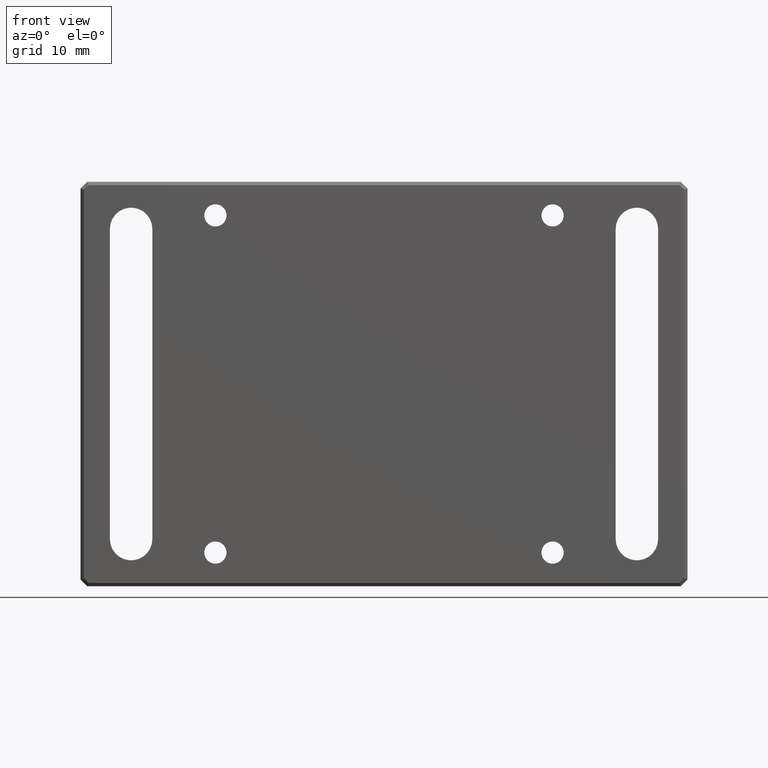
[diagram: clean part render]
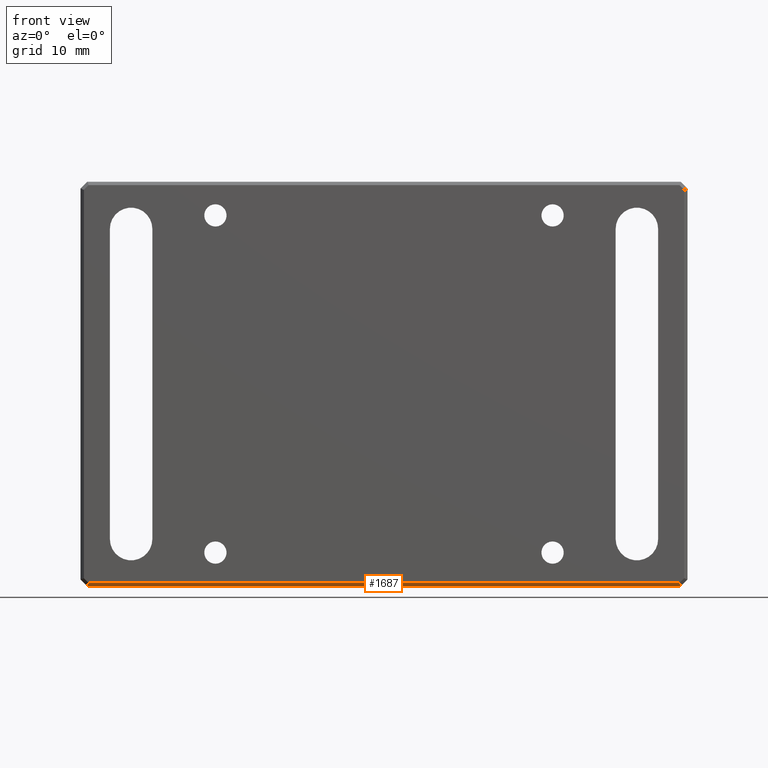
[diagram: same view with one face highlighted and labeled with its STEP entity id]
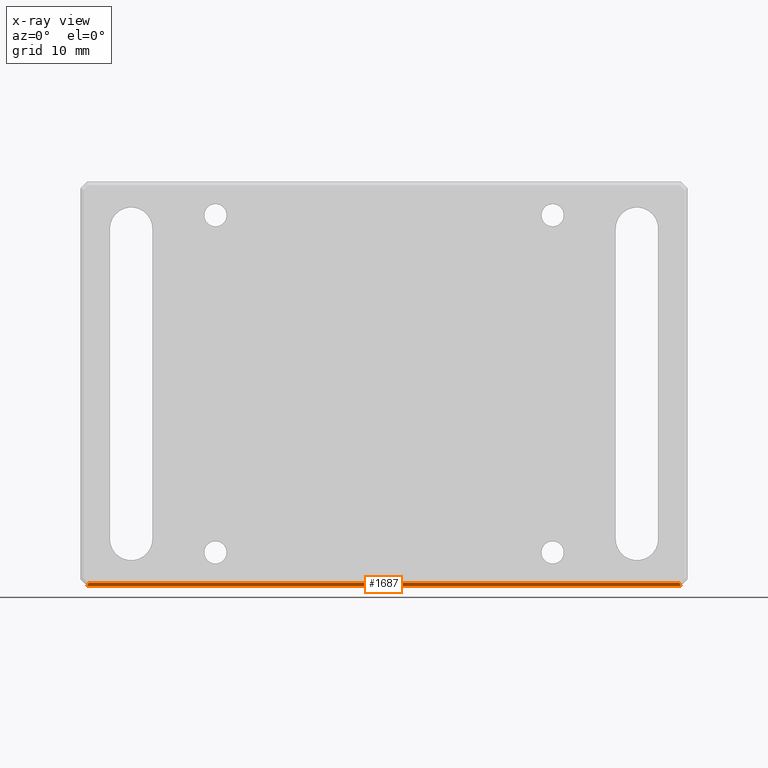
[diagram: x-ray of the same camera — body ghosted, the highlighted face saturated]
A machine part, front view. The second image highlights one B-rep face of the part: STEP entity #1687.
The next image is the same camera in x-ray: the body ghosted, the highlighted face saturated — about 0% of this face is hidden behind the body in this view.
In plain terms, the highlighted planar face has unit normal (0, 0.7071, 0.7071).
Its self-contained STEP definition (entity closure, byte-faithful):
#35 = CARTESIAN_POINT ( 'NONE',  ( 43.79289321881341124, 0.000000000000000000, -29.50000000000000000 ) ) ;
#124 = CARTESIAN_POINT ( 'NONE',  ( -45.00000000000002132, 0.5000000000000004441, -30.00000000000000000 ) ) ;
#178 = CARTESIAN_POINT ( 'NONE',  ( -44.00000000000002132, 0.5000000000000013323, -30.00000000000000000 ) ) ;
#181 = VECTOR ( 'NONE', #584, 1000.000000000000000 ) ;
#227 = CARTESIAN_POINT ( 'NONE',  ( -43.79289321881347519, 0.000000000000000000, -29.50000000000000000 ) ) ;
#233 = CARTESIAN_POINT ( 'NONE',  ( 36.96823695322454739, -16.47617771491885108, -13.02382228508114714 ) ) ;
#262 = VECTOR ( 'NONE', #902, 1000.000000000000000 ) ;
#267 = CARTESIAN_POINT ( 'NONE',  ( 0.000000000000000000, 0.000000000000000000, -29.50000000000000000 ) ) ;
#272 = AXIS2_PLACEMENT_3D ( 'NONE', #124, #1436, #1589 ) ;
#279 = EDGE_CURVE ( 'NONE', #369, #664, #1177, .T. ) ;
#330 = PLANE ( 'NONE',  #272 ) ;
#369 = VERTEX_POINT ( 'NONE', #227 ) ;
#489 = DIRECTION ( 'NONE',  ( 0.2810846377148247255, 0.6785983445458461105, -0.6785983445458461105 ) ) ;
#509 = DIRECTION ( 'NONE',  ( 1.000000000000000000, 0.000000000000000000, 0.000000000000000000 ) ) ;
#584 = DIRECTION ( 'NONE',  ( -1.000000000000000000, 0.000000000000000000, 0.000000000000000000 ) ) ;
#664 = VERTEX_POINT ( 'NONE', #178 ) ;
#719 = EDGE_CURVE ( 'NONE', #1020, #982, #1558, .T. ) ;
#790 = ORIENTED_EDGE ( 'NONE', *, *, #1651, .F. ) ;
#808 = LINE ( 'NONE', #267, #1089 ) ;
#856 = EDGE_LOOP ( 'NONE', ( #885, #790, #1667, #873 ) ) ;
#873 = ORIENTED_EDGE ( 'NONE', *, *, #1416, .F. ) ;
#885 = ORIENTED_EDGE ( 'NONE', *, *, #279, .T. ) ;
#902 = DIRECTION ( 'NONE',  ( -0.2810846377148247255, 0.6785983445458461105, -0.6785983445458461105 ) ) ;
#982 = VERTEX_POINT ( 'NONE', #1507 ) ;
#1020 = VERTEX_POINT ( 'NONE', #35 ) ;
#1089 = VECTOR ( 'NONE', #509, 1000.000000000000000 ) ;
#1177 = LINE ( 'NONE', #1575, #262 ) ;
#1281 = LINE ( 'NONE', #1533, #181 ) ;
#1391 = FACE_OUTER_BOUND ( 'NONE', #856, .T. ) ;
#1416 = EDGE_CURVE ( 'NONE', #369, #1020, #808, .T. ) ;
#1436 = DIRECTION ( 'NONE',  ( 0.000000000000000000, 0.7071067811865475727, 0.7071067811865475727 ) ) ;
#1507 = CARTESIAN_POINT ( 'NONE',  ( 43.99999999999996447, 0.5000000000000004441, -30.00000000000000000 ) ) ;
#1533 = CARTESIAN_POINT ( 'NONE',  ( -45.00000000000002132, 0.5000000000000004441, -30.00000000000000000 ) ) ;
#1558 = LINE ( 'NONE', #233, #1661 ) ;
#1575 = CARTESIAN_POINT ( 'NONE',  ( -44.59140140406839237, 1.927769290508334565, -31.42776929050833346 ) ) ;
#1589 = DIRECTION ( 'NONE',  ( -1.000000000000000000, 0.000000000000000000, 0.000000000000000000 ) ) ;
#1651 = EDGE_CURVE ( 'NONE', #982, #664, #1281, .T. ) ;
#1661 = VECTOR ( 'NONE', #489, 1000.000000000000000 ) ;
#1667 = ORIENTED_EDGE ( 'NONE', *, *, #719, .F. ) ;
#1687 = ADVANCED_FACE ( 'NONE', ( #1391 ), #330, .F. ) ;